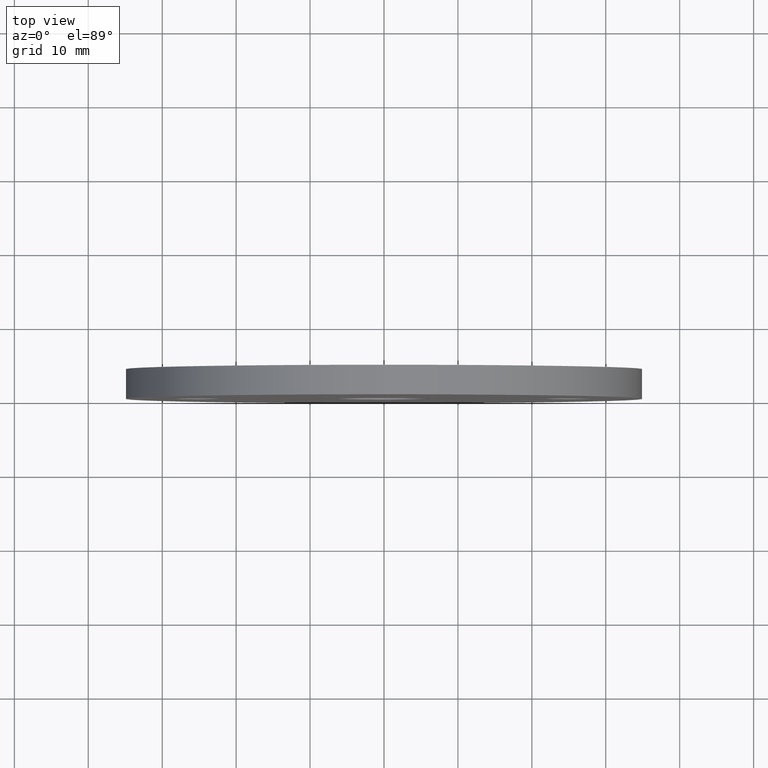
[diagram: clean part render]
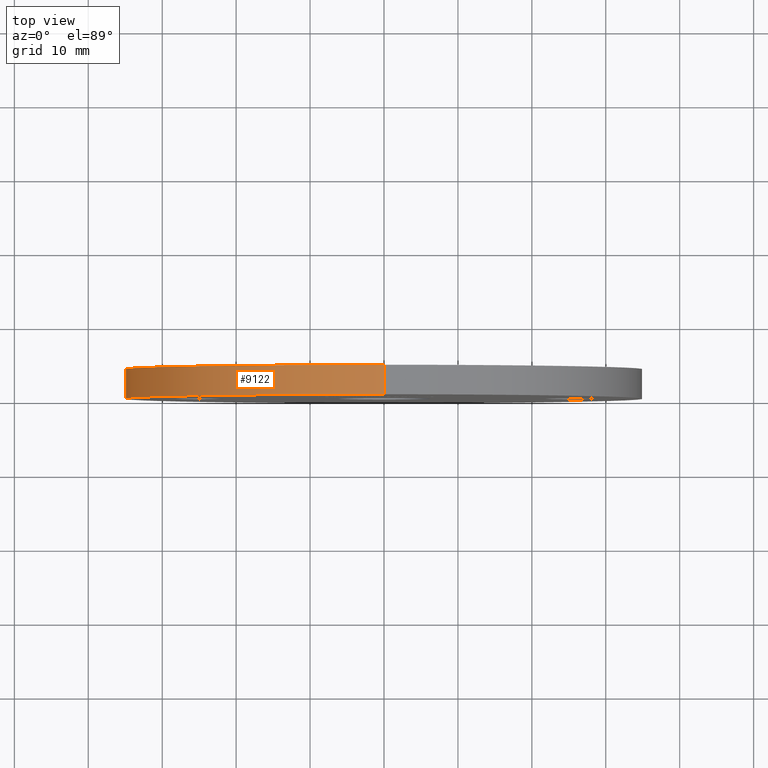
[diagram: same view with one face highlighted and labeled with its STEP entity id]
A machine part, top view. The second image highlights one B-rep face of the part: STEP entity #9122.
In plain terms, the highlighted cylindrical surface (partial cylindrical patch) has radius 35 mm, axis along (-0, -1, -0).
Its self-contained STEP definition (entity closure, byte-faithful):
#248 = VERTEX_POINT ( 'NONE', #2107 ) ;
#305 = AXIS2_PLACEMENT_3D ( 'NONE', #10014, #306, #12234 ) ;
#306 = DIRECTION ( 'NONE',  ( 0.0000000000000000000, 1.000000000000000000, 0.0000000000000000000 ) ) ;
#1625 = DIRECTION ( 'NONE',  ( -0.0000000000000000000, -1.000000000000000000, -0.0000000000000000000 ) ) ;
#1648 = EDGE_CURVE ( 'NONE', #10203, #248, #10227, .T. ) ;
#2107 = CARTESIAN_POINT ( 'NONE',  ( 4.286263797015737300E-015, 4.000000000000000000, 35.00000000000000700 ) ) ;
#2779 = CARTESIAN_POINT ( 'NONE',  ( 0.0000000000000000000, 0.0000000000000000000, -35.00000000000000700 ) ) ;
#3341 = EDGE_CURVE ( 'NONE', #248, #6719, #7255, .T. ) ;
#3667 = VECTOR ( 'NONE', #3807, 1000.000000000000000 ) ;
#3742 = CARTESIAN_POINT ( 'NONE',  ( 4.286263797015737300E-015, 4.000000000000000000, 35.00000000000000700 ) ) ;
#3807 = DIRECTION ( 'NONE',  ( -0.0000000000000000000, -1.000000000000000000, -0.0000000000000000000 ) ) ;
#4543 = EDGE_LOOP ( 'NONE', ( #6111, #10441, #8304, #11062 ) ) ;
#4548 = FACE_OUTER_BOUND ( 'NONE', #4543, .T. ) ;
#4692 = EDGE_CURVE ( 'NONE', #10203, #13635, #6023, .T. ) ;
#5366 = EDGE_CURVE ( 'NONE', #13635, #6719, #13405, .T. ) ;
#5860 = AXIS2_PLACEMENT_3D ( 'NONE', #11319, #9155, #8191 ) ;
#5927 = CARTESIAN_POINT ( 'NONE',  ( 0.0000000000000000000, 4.000000000000000000, 0.0000000000000000000 ) ) ;
#6023 = LINE ( 'NONE', #9312, #3667 ) ;
#6043 = CYLINDRICAL_SURFACE ( 'NONE', #5860, 35.00000000000000700 ) ;
#6111 = ORIENTED_EDGE ( 'NONE', *, *, #3341, .F. ) ;
#6536 = CARTESIAN_POINT ( 'NONE',  ( 0.0000000000000000000, 4.000000000000000000, -35.00000000000000700 ) ) ;
#6610 = CARTESIAN_POINT ( 'NONE',  ( 4.286263797015737300E-015, 0.0000000000000000000, 35.00000000000000700 ) ) ;
#6719 = VERTEX_POINT ( 'NONE', #6610 ) ;
#6888 = DIRECTION ( 'NONE',  ( 0.0000000000000000000, 0.0000000000000000000, 1.000000000000000000 ) ) ;
#7178 = AXIS2_PLACEMENT_3D ( 'NONE', #5927, #13444, #6888 ) ;
#7255 = LINE ( 'NONE', #3742, #8297 ) ;
#8191 = DIRECTION ( 'NONE',  ( 0.0000000000000000000, 0.0000000000000000000, -1.000000000000000000 ) ) ;
#8297 = VECTOR ( 'NONE', #1625, 1000.000000000000000 ) ;
#8304 = ORIENTED_EDGE ( 'NONE', *, *, #4692, .T. ) ;
#9122 = ADVANCED_FACE ( 'NONE', ( #4548 ), #6043, .T. ) ;
#9155 = DIRECTION ( 'NONE',  ( -0.0000000000000000000, -1.000000000000000000, -0.0000000000000000000 ) ) ;
#9312 = CARTESIAN_POINT ( 'NONE',  ( 0.0000000000000000000, 4.000000000000000000, -35.00000000000000700 ) ) ;
#10014 = CARTESIAN_POINT ( 'NONE',  ( 0.0000000000000000000, 0.0000000000000000000, 0.0000000000000000000 ) ) ;
#10203 = VERTEX_POINT ( 'NONE', #6536 ) ;
#10227 = CIRCLE ( 'NONE', #7178, 35.00000000000000700 ) ;
#10441 = ORIENTED_EDGE ( 'NONE', *, *, #1648, .F. ) ;
#11062 = ORIENTED_EDGE ( 'NONE', *, *, #5366, .T. ) ;
#11319 = CARTESIAN_POINT ( 'NONE',  ( 0.0000000000000000000, 4.000000000000000000, 0.0000000000000000000 ) ) ;
#12234 = DIRECTION ( 'NONE',  ( 0.0000000000000000000, 0.0000000000000000000, 1.000000000000000000 ) ) ;
#13405 = CIRCLE ( 'NONE', #305, 35.00000000000000700 ) ;
#13444 = DIRECTION ( 'NONE',  ( 0.0000000000000000000, 1.000000000000000000, 0.0000000000000000000 ) ) ;
#13635 = VERTEX_POINT ( 'NONE', #2779 ) ;